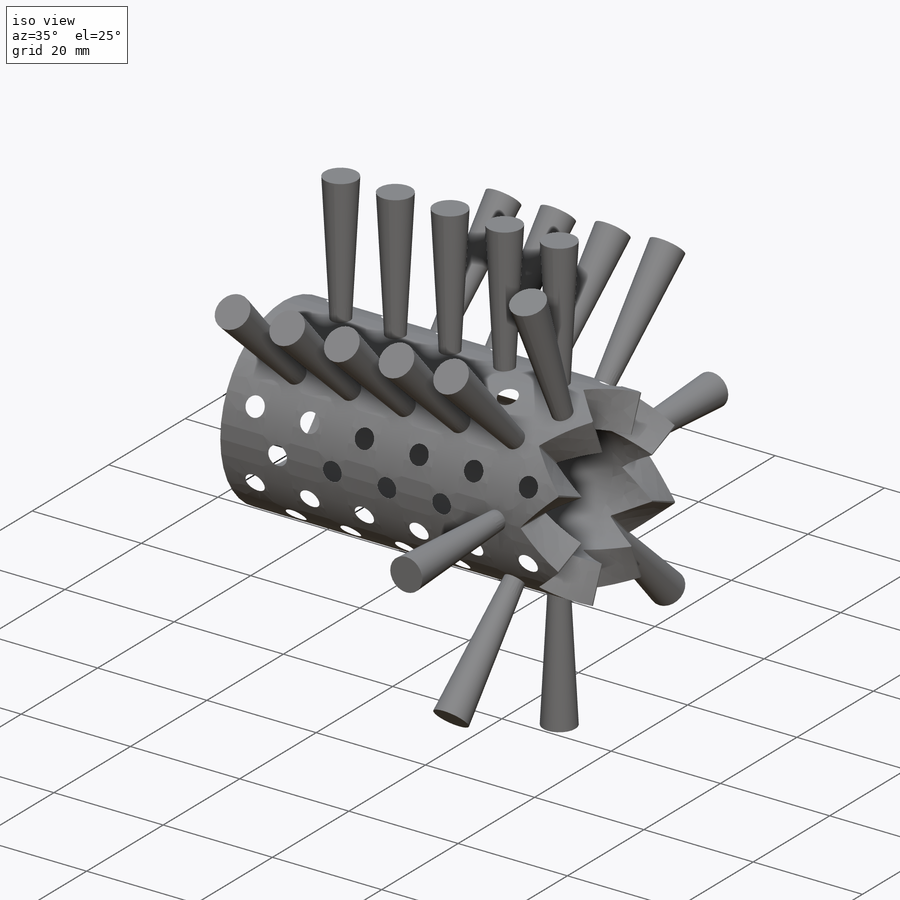
[diagram: iso view]
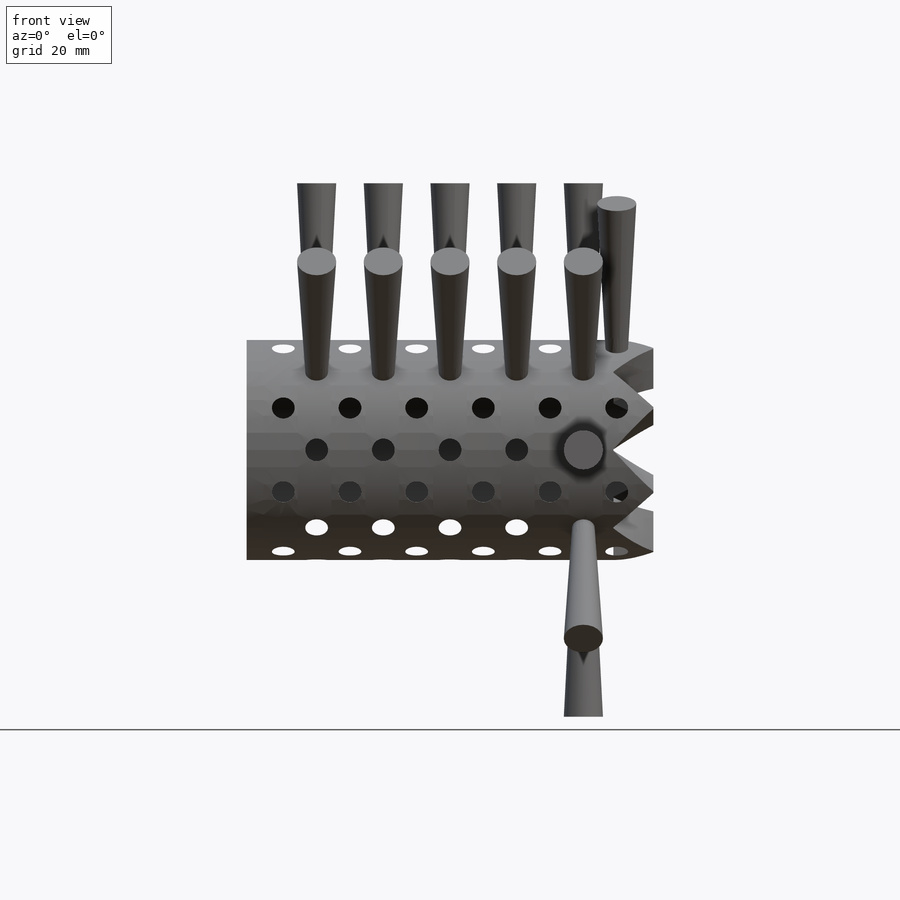
[diagram: front view]
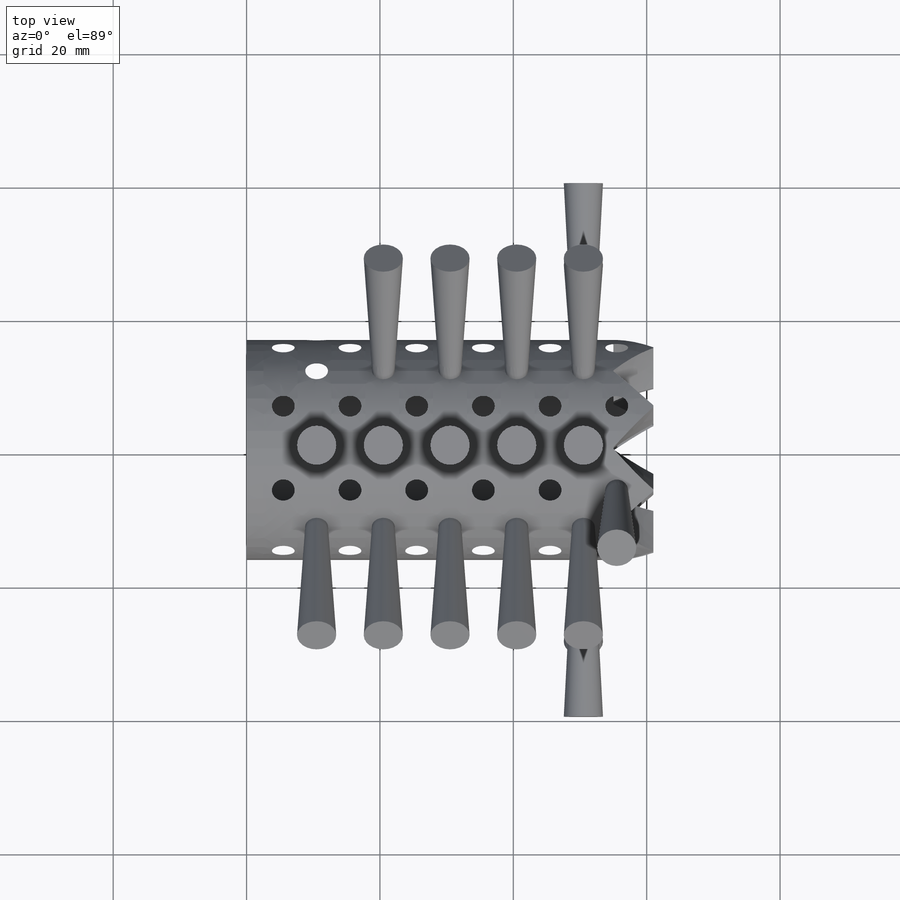
[diagram: top view]
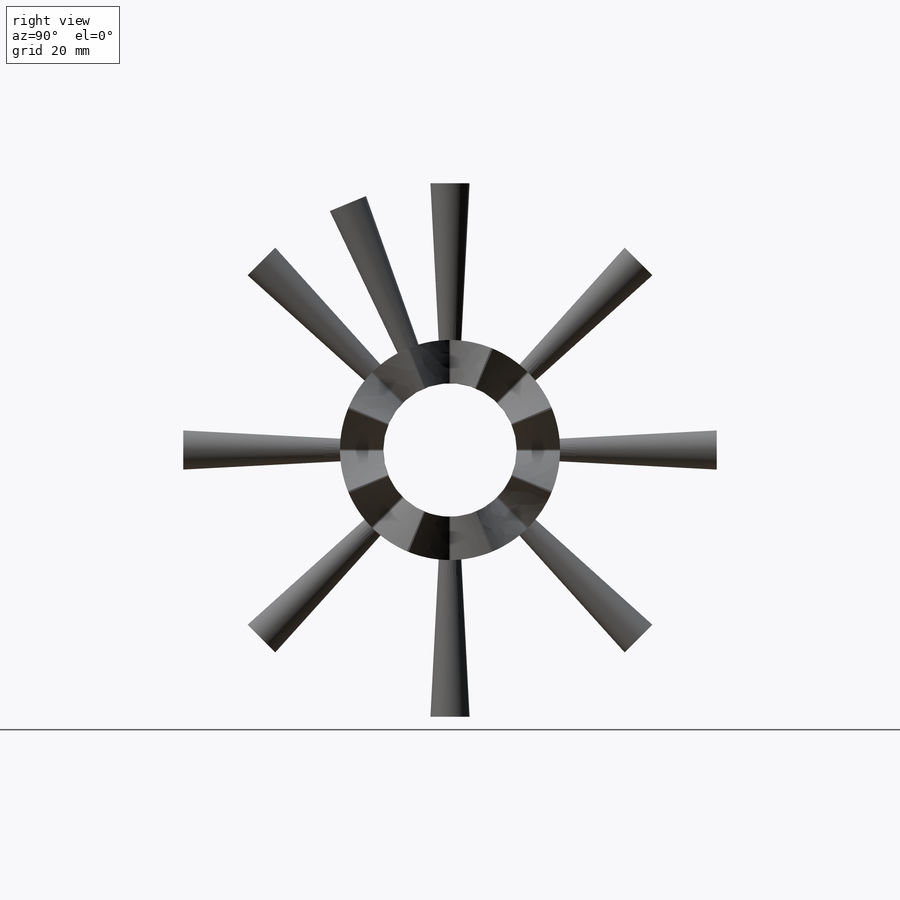
[diagram: right view]
SOLIDWORKS PART (.sldprt)
format: sldprt  version: not decoded by parser v0  size: 1,186,816 bytes
history: native  units: mm
features: plane x9, sketch x6, extrude x3, pattern_circular x3, pattern_linear x2, material x1 (+9 scaffold rows collapsed)
feature tree (33):
  scaffold x9  (default folders/planes/origin — collapsed)
  material  "PA6"
  plane  "Vorderansicht"
  plane  "Draufsicht"
  plane  "Seitenansicht"
  sketch  "Skizze1"  dims[D1=20.0mm D2=33.0mm]
  extrude  "Linear austragen1"  Depth=61mm
  plane  "Ebene1"
  sketch  "Skizze3"  dims[c1.D1=16.5mm c2.D1=44.0deg c2.D2=~7.369424mm]
  sketch  "Skizze4"  dims[D1=~3.197708mm D2=~4.963447mm]
  plane  "Ebene2"
  sketch  "Skizze5"  dims[c1.D1=~1.732231mm c2.D1=90.0deg c3.D1=~1.732231mm c3.D2=~2.73221mm]
  pattern_circular  "Kreismuster1"  Count=8 Angle=360deg
  plane  "Ebene3"
  plane  "Ebene4"  Offset=2mm
  sketch  "Skizze8"  dims[D1=3.2mm D2=10.5mm]
  extrude  "Bürste1"  Depth=25.5mm
  plane  "Ebene5"
  plane  "Ebene6"  Offset=2mm
  sketch  "Skizze9"  dims[D1=3.2mm D2=5.5mm]
  extrude  "Bürtse2"  Depth=25.5mm
  pattern_circular  "Kreismuster3"  Count=8 Angle=45deg
  pattern_linear  "Lineares Muster1"  Count1=5 Count2=1 Spacing1=10mm Spacing2=1mm
  pattern_circular  "Kreismuster4"  Count=8 Angle=45deg
  pattern_linear  "Lineares Muster2"  Count1=6 Count2=1 Spacing1=10mm Spacing2=1mm
decode coverage: 14 of 14 modeling features carry decoded parameters
note: ~ marks probable driven/reference dimensions
note: suppression state not decoded; provenance and decode notes live in map.json
